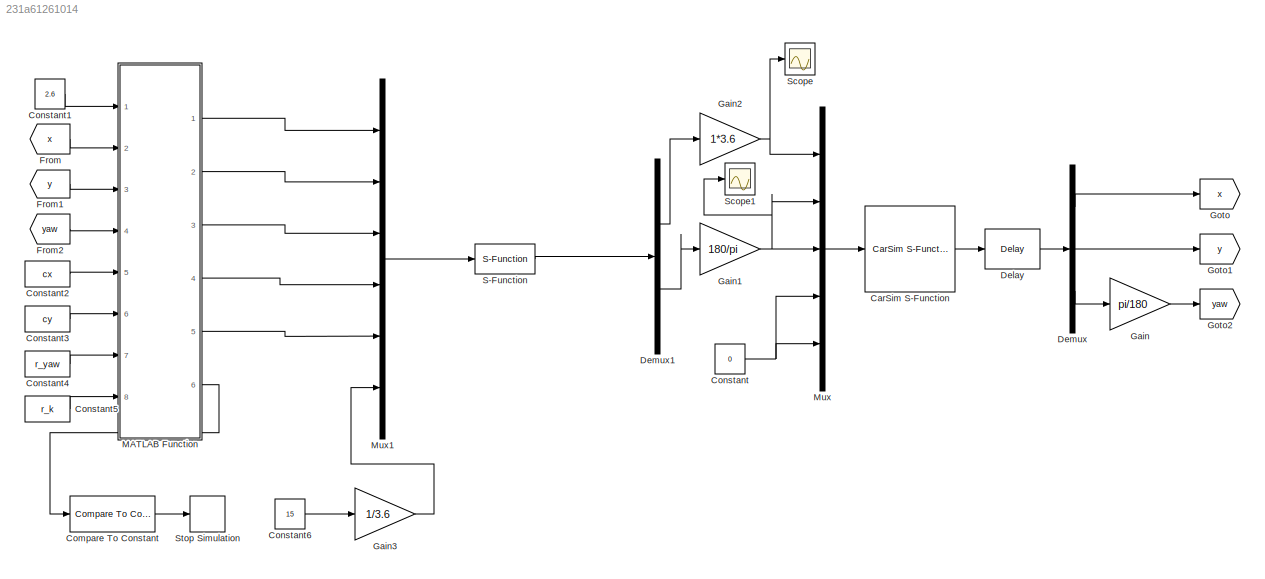
MODEL slx_231a61261014
KIND model
CONFIG AbsTol = auto
CONFIG EnableMultiTasking = off
CONFIG FixedStep = auto
CONFIG MaxStep = auto
CONFIG MinStep = auto
CONFIG RelTol = 1e-3
CONFIG SampleTimeConstraint = Unconstrained
CONFIG SolverName = VariableStepAuto
CONFIG StartTime = 0.0
CONFIG StopTime = 50
BLOCK [Reference] CarSim S-Function  REF=Solver_SF/CarSim S-Function
  Ports = [1, 1]
  Priority = 1
  SourceBlock = Solver_SF/CarSim S-Function
  SourceProductName = CarSim S-Function
  SourceType = Vehicle math model library
BLOCK [Reference] Compare To Constant  REF=simulink/Logic and Bit
Operations/Compare
To Constant
  Ports = [1, 1]
  SourceBlock = simulink/Logic and Bit\nOperations/Compare\nTo Constant
  SourceProductBaseCode = SL
  SourceType = Compare To Constant
BLOCK [Constant] Constant
  Value = 0
BLOCK [Constant] Constant1
  Value = 2.6
BLOCK [Constant] Constant2
  Value = cx
BLOCK [Constant] Constant3
  Value = cy
BLOCK [Constant] Constant4
  Value = r_yaw
BLOCK [Constant] Constant5
  Value = r_k
BLOCK [Constant] Constant6
  Value = 15
BLOCK [Delay] Delay
  DelayLength = 1
  InitialCondition = 0
  InputPortMap = u0
  Ports = [1, 1]
  UseCircularBuffer = on
  UserDataPersistent = on
BLOCK [Demux] Demux
  Outputs = 3
  Ports = [1, 3]
BLOCK [Demux] Demux1
  Outputs = 2
  Ports = [1, 2]
BLOCK [From] From
  GotoTag = x
BLOCK [From] From1
  GotoTag = y
BLOCK [From] From2
  GotoTag = yaw
BLOCK [Gain] Gain
  Gain = pi/180
BLOCK [Gain] Gain1
  Gain = 180/pi
BLOCK [Gain] Gain2
  Gain = 1*3.6
BLOCK [Gain] Gain3
  Gain = 1/3.6
BLOCK [Goto] Goto
  GotoTag = x
BLOCK [Goto] Goto1
  GotoTag = y
BLOCK [Goto] Goto2
  GotoTag = yaw
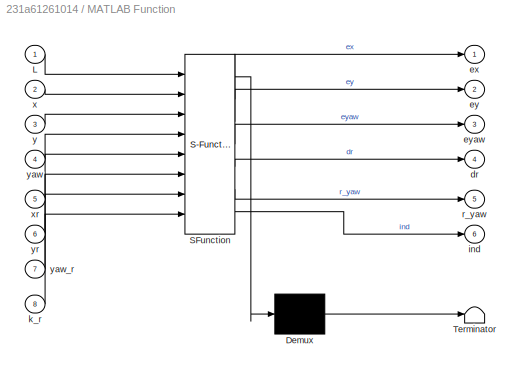
BLOCK [SubSystem] MATLAB Function
  ErrorFcn = Stateflow.Translate.translate
  PermitHierarchicalResolution = ExplicitOnly
  Ports = [8, 6]
  RequestExecContextInheritance = off
  SFBlockType = MATLAB Function
  TreatAsAtomicUnit = on
BLOCK [Demux] MATLAB Function/ Demux 
  Outputs = 1
  Ports = [1, 1]
BLOCK [S-Function] MATLAB Function/ SFunction 
  EnableBusSupport = on
  FunctionName = sf_sfun
  PortCounts = [8 7]
  Ports = [8, 7]
  SFcnIsStateOwnerBlock = off
  SFunctionDeploymentMode = off
  Tag = Stateflow S-Function 2
BLOCK [Terminator] MATLAB Function/ Terminator 
BLOCK [Inport] MATLAB Function/L
BLOCK [Outport] MATLAB Function/dr
  Port = 4
BLOCK [Outport] MATLAB Function/ex
BLOCK [Outport] MATLAB Function/ey
  Port = 2
BLOCK [Outport] MATLAB Function/eyaw
  Port = 3
BLOCK [Outport] MATLAB Function/ind
  Port = 6
BLOCK [Inport] MATLAB Function/k_r
  Port = 8
BLOCK [Outport] MATLAB Function/r_yaw
  Port = 5
BLOCK [Inport] MATLAB Function/x
  Port = 2
BLOCK [Inport] MATLAB Function/xr
  Port = 5
BLOCK [Inport] MATLAB Function/y
  Port = 3
BLOCK [Inport] MATLAB Function/yaw
  Port = 4
BLOCK [Inport] MATLAB Function/yaw_r
  Port = 7
BLOCK [Inport] MATLAB Function/yr
  Port = 6
BLOCK [Mux] Mux
  DisplayOption = bar
  Inputs = 5
  Ports = [5, 1]
BLOCK [Mux] Mux1
  DisplayOption = bar
  Inputs = 6
  Ports = [6, 1]
BLOCK [S-Function] S-Function
  EnableBusSupport = off
  FunctionName = MY_MPCController
  Ports = [1, 1]
  SFcnIsStateOwnerBlock = off
  SFunctionDeploymentMode = off
BLOCK [Scope] Scope
  Floating = off
  NumInputPorts = 1
  Ports = [1]
  ScopeSpecificationString = Simulink.scopes.TimeScopeBlockCfg('CurrentConfiguration', extmgr.ConfigurationSet(extmgr.Configuration('Core','General UI',true),extmgr.Configuration('Core','Source UI',true),extmgr.Configuration('Sources','WiredSimulink',true),extmgr.Configuration('Visuals','Time Domain',true,'SerializedDisplays',{struct('MinYLimReal','15.48453','MaxYLimReal','16.53765','YLabelReal','','MinYLimMag','15.48453','Ma...<+1731ch>
BLOCK [Scope] Scope1
  Floating = off
  NumInputPorts = 1
  Ports = [1]
  ScopeSpecificationString = Simulink.scopes.TimeScopeBlockCfg('CurrentConfiguration', extmgr.ConfigurationSet(extmgr.Configuration('Core','General UI',true),extmgr.Configuration('Core','Source UI',true),extmgr.Configuration('Sources','WiredSimulink',true,'DataLoggingVariableName','ScopeData1'),extmgr.Configuration('Visuals','Time Domain',true),extmgr.Configuration('Tools','Plot Navigation',true),extmgr.Configuration('Tools',...<+40ch>
BLOCK [Stop] Stop Simulation
LINE CarSim S-Function:1 -> Delay:1
LINE Compare To Constant:1 -> Stop Simulation:1
LINE Constant1:1 -> MATLAB Function:1
LINE Constant2:1 -> MATLAB Function:5
LINE Constant3:1 -> MATLAB Function:6
LINE Constant4:1 -> MATLAB Function:7
LINE Constant5:1 -> MATLAB Function:8
LINE Constant6:1 -> Gain3:1
NET Constant:1 -> Mux:4, Mux:5
LINE Delay:1 -> Demux:1
LINE Demux1:1 -> Gain2:1
LINE Demux1:2 -> Gain1:1
LINE Demux:1 -> Goto:1
LINE Demux:2 -> Goto1:1
LINE Demux:3 -> Gain:1
LINE From1:1 -> MATLAB Function:3
LINE From2:1 -> MATLAB Function:4
LINE From:1 -> MATLAB Function:2
NET Gain1:1 -> Mux:2, Mux:3, Scope1:1
NET Gain2:1 -> Mux:1, Scope:1
LINE Gain3:1 -> Mux1:6
LINE Gain:1 -> Goto2:1
LINE MATLAB Function:1 -> Mux1:1
LINE MATLAB Function:2 -> Mux1:2
LINE MATLAB Function:3 -> Mux1:3
LINE MATLAB Function:4 -> Mux1:4
LINE MATLAB Function:5 -> Mux1:5
LINE MATLAB Function:6 -> Compare To Constant:1
LINE Mux1:1 -> S-Function:1
LINE Mux:1 -> CarSim S-Function:1
LINE S-Function:1 -> Demux1:1
note: NET lines group one-source signal fan-out (src -> all destinations, sorted); 1:1 wires keep LINE
CHART MATLAB Function states=1 transitions=1
  STATE_LABEL 'eML_blk_kernel()'
  STATE_LABEL 'SCRIPT:\nfunction [ex,ey,eyaw,dr,r_yaw,ind] = fcn(L,x,y,yaw,xr,yr,yaw_r,k_r)\n%1.寻找匹配点（车辆离期望路径最近的点）   \n    n=length(xr);\n    d_min=(x-xr(1))^2+(y-yr(1))^2;\n    min=1;\n    for i=1:n\n        d=(x-xr(i))^2+(y-yr(i))^2;\n        if d<d_min\n            d_min=d;\n            min=i;\n        end\n    end\n    ind=min;\n\n%2.计算3个误差状态[ex,ey,eyaw]\n    ex=x-xr(ind);\n    ey=y-yr(ind);\n\n    eyaw=yaw-yaw_r(ind);\n\n%3.计算计...<+76ch>'
CHART  states=0 transitions=0
